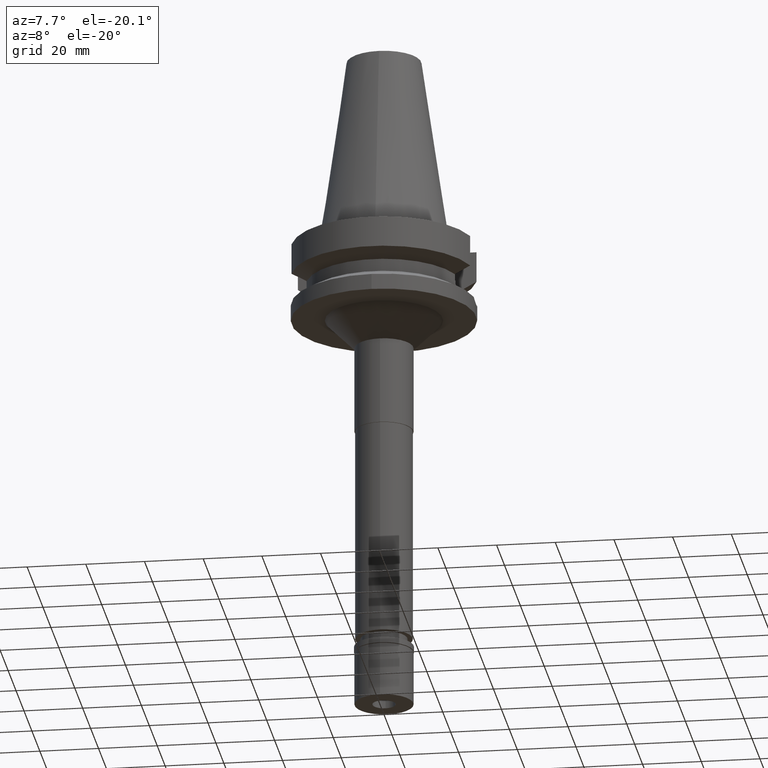
[diagram: clean part render]
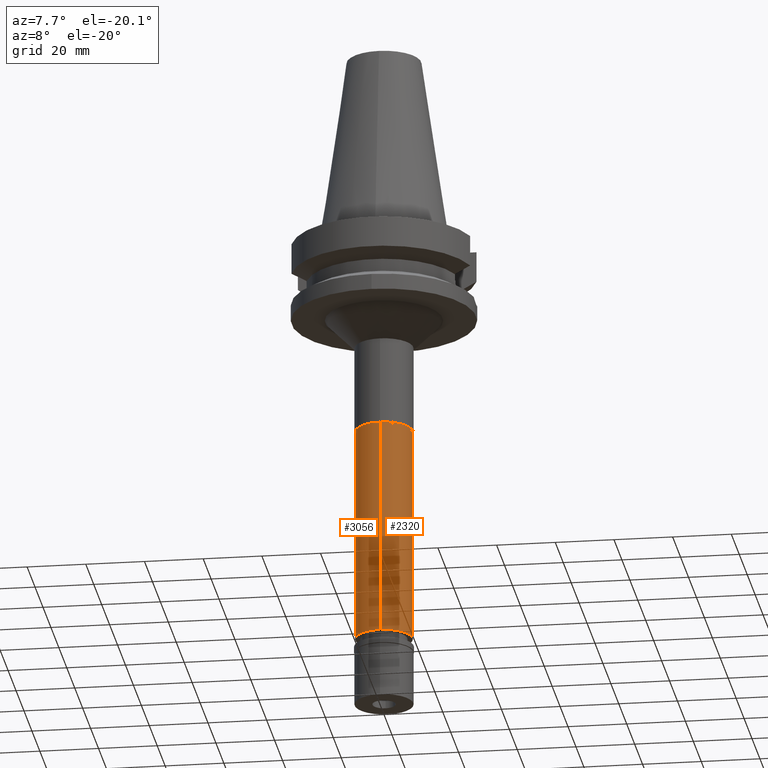
[diagram: same view with one multi-face feature highlighted, each face labeled with its STEP entity id]
A machine part, auxiliary view. The highlighted faces form ONE feature: a constant-radius fillet chain: 2 tangent blend faces with common blend radius 9.75 mm. The faces share edges in the B-rep.
Their STEP definitions:
[1] entity #3056 (Cylinder):
#26 = DIRECTION ( 'NONE',  ( 0.0000000000000000000, -1.000000000000000000, 0.0000000000000000000 ) ) ;
#48 = EDGE_CURVE ( 'NONE', #1305, #1218, #414, .T. ) ;
#75 = ORIENTED_EDGE ( 'NONE', *, *, #721, .T. ) ;
#379 = DIRECTION ( 'NONE',  ( 0.0000000000000000000, 0.0000000000000000000, 1.000000000000000000 ) ) ;
#406 = DIRECTION ( 'NONE',  ( 0.0000000000000000000, 1.000000000000000000, 0.0000000000000000000 ) ) ;
#414 = CIRCLE ( 'NONE', #1600, 9.750000000000000000 ) ;
#567 = CARTESIAN_POINT ( 'NONE',  ( 0.0000000000000000000, 9.750000000000000000, -141.5999999999999943 ) ) ;
#641 = VERTEX_POINT ( 'NONE', #1696 ) ;
#652 = DIRECTION ( 'NONE',  ( 0.0000000000000000000, 0.0000000000000000000, -1.000000000000000000 ) ) ;
#721 = EDGE_CURVE ( 'NONE', #2797, #1305, #2905, .T. ) ;
#783 = CARTESIAN_POINT ( 'NONE',  ( 0.0000000000000000000, 0.0000000000000000000, -67.00000000000000000 ) ) ;
#804 = EDGE_CURVE ( 'NONE', #641, #1218, #2410, .T. ) ;
#1030 = DIRECTION ( 'NONE',  ( 0.0000000000000000000, 0.0000000000000000000, -1.000000000000000000 ) ) ;
#1081 = ORIENTED_EDGE ( 'NONE', *, *, #2485, .T. ) ;
#1218 = VERTEX_POINT ( 'NONE', #2360 ) ;
#1305 = VERTEX_POINT ( 'NONE', #567 ) ;
#1313 = ORIENTED_EDGE ( 'NONE', *, *, #804, .F. ) ;
#1402 = VECTOR ( 'NONE', #1701, 1000.000000000000000 ) ;
#1451 = CIRCLE ( 'NONE', #1557, 9.750000000000000000 ) ;
#1494 = DIRECTION ( 'NONE',  ( 0.0000000000000000000, 0.0000000000000000000, -1.000000000000000000 ) ) ;
#1557 = AXIS2_PLACEMENT_3D ( 'NONE', #783, #1494, #1724 ) ;
#1600 = AXIS2_PLACEMENT_3D ( 'NONE', #1601, #379, #406 ) ;
#1601 = CARTESIAN_POINT ( 'NONE',  ( 0.0000000000000000000, 0.0000000000000000000, -141.5999999999999943 ) ) ;
#1696 = CARTESIAN_POINT ( 'NONE',  ( 0.0000000000000000000, -9.750000000000000000, -67.00000000000000000 ) ) ;
#1701 = DIRECTION ( 'NONE',  ( 0.0000000000000000000, 0.0000000000000000000, -1.000000000000000000 ) ) ;
#1724 = DIRECTION ( 'NONE',  ( 0.0000000000000000000, -1.000000000000000000, 0.0000000000000000000 ) ) ;
#1746 = FACE_OUTER_BOUND ( 'NONE', #2238, .T. ) ;
#1779 = CYLINDRICAL_SURFACE ( 'NONE', #2484, 9.750000000000000000 ) ;
#1848 = ORIENTED_EDGE ( 'NONE', *, *, #48, .T. ) ;
#2238 = EDGE_LOOP ( 'NONE', ( #1848, #1313, #1081, #75 ) ) ;
#2360 = CARTESIAN_POINT ( 'NONE',  ( 0.0000000000000000000, -9.750000000000000000, -141.5999999999999943 ) ) ;
#2410 = LINE ( 'NONE', #2835, #1402 ) ;
#2412 = CARTESIAN_POINT ( 'NONE',  ( 0.0000000000000000000, 9.750000000000000000, -67.00000000000000000 ) ) ;
#2484 = AXIS2_PLACEMENT_3D ( 'NONE', #2971, #1030, #26 ) ;
#2485 = EDGE_CURVE ( 'NONE', #641, #2797, #1451, .T. ) ;
#2797 = VERTEX_POINT ( 'NONE', #2412 ) ;
#2835 = CARTESIAN_POINT ( 'NONE',  ( 0.0000000000000000000, -9.750000000000000000, -67.00000000000000000 ) ) ;
#2886 = VECTOR ( 'NONE', #652, 1000.000000000000000 ) ;
#2905 = LINE ( 'NONE', #3179, #2886 ) ;
#2971 = CARTESIAN_POINT ( 'NONE',  ( 0.0000000000000000000, 0.0000000000000000000, 0.0000000000000000000 ) ) ;
#3056 = ADVANCED_FACE ( 'NONE', ( #1746 ), #1779, .T. ) ;
#3179 = CARTESIAN_POINT ( 'NONE',  ( 0.0000000000000000000, 9.750000000000000000, -67.00000000000000000 ) ) ;
[2] entity #2320 (Cylinder):
#88 = ORIENTED_EDGE ( 'NONE', *, *, #2417, .T. ) ;
#210 = CARTESIAN_POINT ( 'NONE',  ( 0.0000000000000000000, 0.0000000000000000000, -141.5999999999999943 ) ) ;
#506 = ORIENTED_EDGE ( 'NONE', *, *, #721, .F. ) ;
#567 = CARTESIAN_POINT ( 'NONE',  ( 0.0000000000000000000, 9.750000000000000000, -141.5999999999999943 ) ) ;
#641 = VERTEX_POINT ( 'NONE', #1696 ) ;
#652 = DIRECTION ( 'NONE',  ( 0.0000000000000000000, 0.0000000000000000000, -1.000000000000000000 ) ) ;
#680 = FACE_OUTER_BOUND ( 'NONE', #832, .T. ) ;
#721 = EDGE_CURVE ( 'NONE', #2797, #1305, #2905, .T. ) ;
#762 = DIRECTION ( 'NONE',  ( 0.0000000000000000000, 0.0000000000000000000, 1.000000000000000000 ) ) ;
#804 = EDGE_CURVE ( 'NONE', #641, #1218, #2410, .T. ) ;
#832 = EDGE_LOOP ( 'NONE', ( #88, #2957, #2940, #506 ) ) ;
#1218 = VERTEX_POINT ( 'NONE', #2360 ) ;
#1220 = DIRECTION ( 'NONE',  ( 0.0000000000000000000, 1.000000000000000000, 0.0000000000000000000 ) ) ;
#1305 = VERTEX_POINT ( 'NONE', #567 ) ;
#1402 = VECTOR ( 'NONE', #1701, 1000.000000000000000 ) ;
#1696 = CARTESIAN_POINT ( 'NONE',  ( 0.0000000000000000000, -9.750000000000000000, -67.00000000000000000 ) ) ;
#1701 = DIRECTION ( 'NONE',  ( 0.0000000000000000000, 0.0000000000000000000, -1.000000000000000000 ) ) ;
#1744 = CARTESIAN_POINT ( 'NONE',  ( 0.0000000000000000000, 0.0000000000000000000, -67.00000000000000000 ) ) ;
#1932 = CYLINDRICAL_SURFACE ( 'NONE', #2436, 9.750000000000000000 ) ;
#2018 = AXIS2_PLACEMENT_3D ( 'NONE', #210, #762, #2739 ) ;
#2109 = DIRECTION ( 'NONE',  ( 0.0000000000000000000, -1.000000000000000000, 0.0000000000000000000 ) ) ;
#2121 = CARTESIAN_POINT ( 'NONE',  ( 0.0000000000000000000, 0.0000000000000000000, 0.0000000000000000000 ) ) ;
#2320 = ADVANCED_FACE ( 'NONE', ( #680 ), #1932, .T. ) ;
#2327 = CIRCLE ( 'NONE', #2018, 9.750000000000000000 ) ;
#2335 = CIRCLE ( 'NONE', #2848, 9.750000000000000000 ) ;
#2360 = CARTESIAN_POINT ( 'NONE',  ( 0.0000000000000000000, -9.750000000000000000, -141.5999999999999943 ) ) ;
#2410 = LINE ( 'NONE', #2835, #1402 ) ;
#2412 = CARTESIAN_POINT ( 'NONE',  ( 0.0000000000000000000, 9.750000000000000000, -67.00000000000000000 ) ) ;
#2417 = EDGE_CURVE ( 'NONE', #2797, #641, #2335, .T. ) ;
#2436 = AXIS2_PLACEMENT_3D ( 'NONE', #2121, #3103, #2109 ) ;
#2500 = DIRECTION ( 'NONE',  ( 0.0000000000000000000, 0.0000000000000000000, -1.000000000000000000 ) ) ;
#2739 = DIRECTION ( 'NONE',  ( 0.0000000000000000000, -1.000000000000000000, 0.0000000000000000000 ) ) ;
#2797 = VERTEX_POINT ( 'NONE', #2412 ) ;
#2835 = CARTESIAN_POINT ( 'NONE',  ( 0.0000000000000000000, -9.750000000000000000, -67.00000000000000000 ) ) ;
#2848 = AXIS2_PLACEMENT_3D ( 'NONE', #1744, #2500, #1220 ) ;
#2886 = VECTOR ( 'NONE', #652, 1000.000000000000000 ) ;
#2891 = EDGE_CURVE ( 'NONE', #1218, #1305, #2327, .T. ) ;
#2905 = LINE ( 'NONE', #3179, #2886 ) ;
#2940 = ORIENTED_EDGE ( 'NONE', *, *, #2891, .T. ) ;
#2957 = ORIENTED_EDGE ( 'NONE', *, *, #804, .T. ) ;
#3103 = DIRECTION ( 'NONE',  ( 0.0000000000000000000, 0.0000000000000000000, -1.000000000000000000 ) ) ;
#3179 = CARTESIAN_POINT ( 'NONE',  ( 0.0000000000000000000, 9.750000000000000000, -67.00000000000000000 ) ) ;